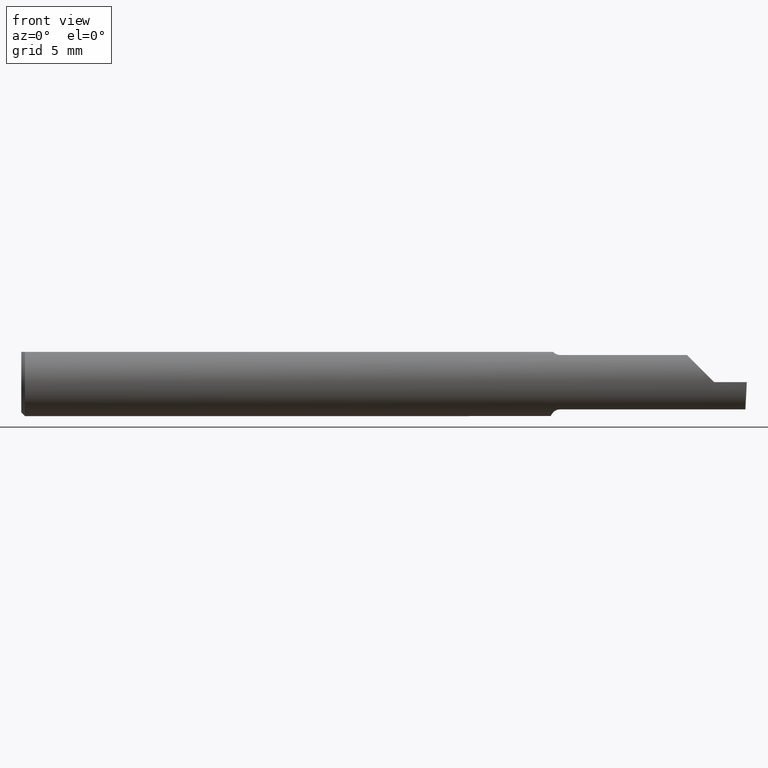
[diagram: clean part render]
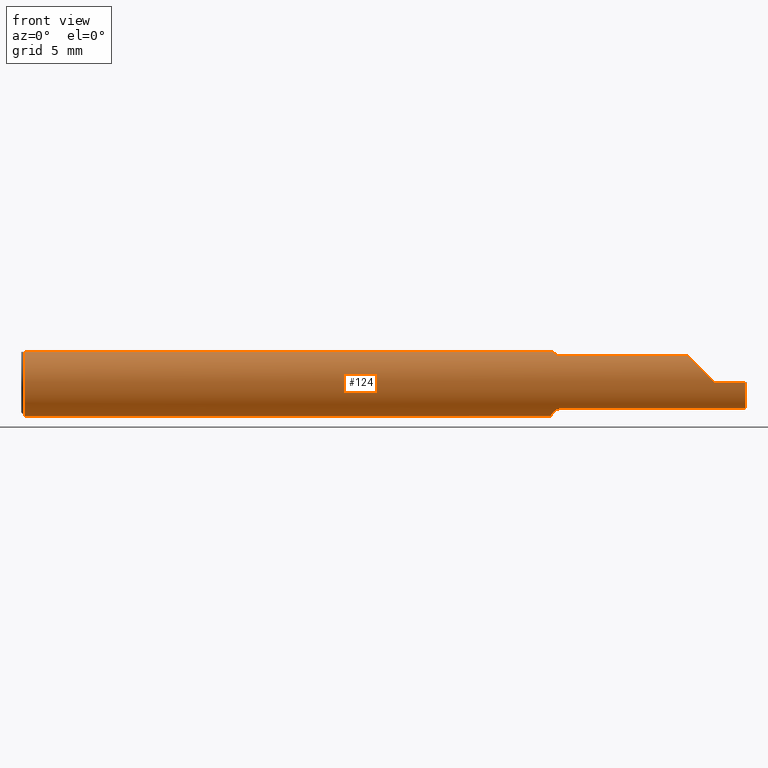
[diagram: same view with one face highlighted and labeled with its STEP entity id]
A machine part, front view. The second image highlights one B-rep face of the part: STEP entity #124.
In plain terms, the highlighted cylindrical surface (edge-blend (fillet) strip) has radius 2.3774 mm, axis along (-1, -0, -0).
Its self-contained STEP definition (entity closure, byte-faithful):
#3 = EDGE_CURVE ( 'NONE', #436, #101, #521, .T. ) ;
#21 = VERTEX_POINT ( 'NONE', #227 ) ;
#23 = CARTESIAN_POINT ( 'NONE',  ( 1.459999999999999964, 0.000000000000000000, 0.000000000000000000 ) ) ;
#25 = CARTESIAN_POINT ( 'NONE',  ( 1.995069675717878299, -0.05810704225352106983, -0.07337936794867833123 ) ) ;
#28 = DIRECTION ( 'NONE',  ( 1.000000000000000000, 3.318744227790140248E-17, 0.000000000000000000 ) ) ;
#37 = CARTESIAN_POINT ( 'NONE',  ( 1.461762116932663336, -0.02818790137206265284, -0.08941930521177111901 ) ) ;
#45 = LINE ( 'NONE', #531, #63 ) ;
#55 = VERTEX_POINT ( 'NONE', #463 ) ;
#60 = DIRECTION ( 'NONE',  ( -1.000000000000000000, -0.000000000000000000, -0.000000000000000000 ) ) ;
#63 = VECTOR ( 'NONE', #692, 39.37007874015748143 ) ;
#65 = CARTESIAN_POINT ( 'NONE',  ( 1.729736605000000038, -0.05810704225352107677, -0.07337936794867833123 ) ) ;
#77 = CARTESIAN_POINT ( 'NONE',  ( 1.995996405735428469, -0.09359999999999997489, -0.02910696448121681199 ) ) ;
#81 = CARTESIAN_POINT ( 'NONE',  ( 1.466206319820905213, -0.04283575577410227847, -0.08338874798717356429 ) ) ;
#84 = VERTEX_POINT ( 'NONE', #205 ) ;
#88 = CARTESIAN_POINT ( 'NONE',  ( 1.995069675717878299, -0.05810704225352106983, -0.07337936794867833123 ) ) ;
#91 = VECTOR ( 'NONE', #514, 39.37007874015748143 ) ;
#96 = CARTESIAN_POINT ( 'NONE',  ( 1.466129652885479473, -0.04209513035970117306, 0.08359999999999991049 ) ) ;
#101 = VERTEX_POINT ( 'NONE', #499 ) ;
#103 = LINE ( 'NONE', #321, #584 ) ;
#113 = VERTEX_POINT ( 'NONE', #154 ) ;
#119 = DIRECTION ( 'NONE',  ( 1.000000000000000000, 0.000000000000000000, 0.000000000000000000 ) ) ;
#124 = ADVANCED_FACE ( 'NONE', ( #316 ), #641, .T. ) ;
#128 = ORIENTED_EDGE ( 'NONE', *, *, #555, .F. ) ;
#130 = CARTESIAN_POINT ( 'NONE',  ( 1.484999999999999876, -0.05810704225352104901, -0.07337936794867834511 ) ) ;
#142 = ORIENTED_EDGE ( 'NONE', *, *, #359, .F. ) ;
#143 = CARTESIAN_POINT ( 'NONE',  ( 1.910000000000000142, -0.09360000000000005815, 1.102182119232621301E-17 ) ) ;
#150 = CARTESIAN_POINT ( 'NONE',  ( 1.470033121973953527, -0.04963861219531613689, 0.07943694244057658560 ) ) ;
#153 = CARTESIAN_POINT ( 'NONE',  ( 1.480292432600753827, -0.05747478081012627471, 0.07388601572377852256 ) ) ;
#154 = CARTESIAN_POINT ( 'NONE',  ( 1.484999999999999876, -0.05810704225352104207, 0.07337936794867834511 ) ) ;
#169 = EDGE_CURVE ( 'NONE', #55, #436, #103, .T. ) ;
#173 = LINE ( 'NONE', #65, #91 ) ;
#179 = CARTESIAN_POINT ( 'NONE',  ( 1.854690286057536941, -0.08092595952420821026, 0.05530971394246249340 ) ) ;
#183 = CARTESIAN_POINT ( 'NONE',  ( 1.462856118429613828, -0.03323074941465640336, -0.08766015375840491286 ) ) ;
#195 = VERTEX_POINT ( 'NONE', #255 ) ;
#204 = DIRECTION ( 'NONE',  ( 0.000000000000000000, 0.000000000000000000, -1.000000000000000000 ) ) ;
#205 = CARTESIAN_POINT ( 'NONE',  ( 1.484999999999999876, -0.05810704225352104901, -0.07337936794867834511 ) ) ;
#208 = ORIENTED_EDGE ( 'NONE', *, *, #369, .F. ) ;
#210 = CARTESIAN_POINT ( 'NONE',  ( 1.729736605000000038, -0.05810704225352107677, 0.07337936794867833123 ) ) ;
#218 = ORIENTED_EDGE ( 'NONE', *, *, #455, .F. ) ;
#223 = EDGE_CURVE ( 'NONE', #391, #84, #173, .T. ) ;
#226 = CARTESIAN_POINT ( 'NONE',  ( 1.995302472377616931, -0.08092595952420821026, -0.05530971394246247952 ) ) ;
#227 = CARTESIAN_POINT ( 'NONE',  ( 0.01000000000000016674, 0.04209513035969864037, 0.08359999999999988274 ) ) ;
#229 = ORIENTED_EDGE ( 'NONE', *, *, #592, .F. ) ;
#231 = VECTOR ( 'NONE', #498, 39.37007874015748143 ) ;
#232 = AXIS2_PLACEMENT_3D ( 'NONE', #382, #60, #377 ) ;
#255 = CARTESIAN_POINT ( 'NONE',  ( 0.01000000000000016674, 0.000000000000000000, -0.09360000000000001652 ) ) ;
#263 = CARTESIAN_POINT ( 'NONE',  ( 1.459999999999999964, 0.04209513035969864037, 0.08359999999999988274 ) ) ;
#293 = CARTESIAN_POINT ( 'NONE',  ( 1.997012998164632958, -0.09360000000000001652, 0.000000000000000000 ) ) ;
#297 = VERTEX_POINT ( 'NONE', #606 ) ;
#314 = ORIENTED_EDGE ( 'NONE', *, *, #223, .F. ) ;
#316 = FACE_OUTER_BOUND ( 'NONE', #682, .T. ) ;
#321 = CARTESIAN_POINT ( 'NONE',  ( 2.999519565323742037E-32, -0.09359999999999998876, 2.449293598294716768E-16 ) ) ;
#338 = CARTESIAN_POINT ( 'NONE',  ( 1.459999999999999964, -0.006757276995305246635, -0.09335576686851605743 ) ) ;
#344 = EDGE_CURVE ( 'NONE', #581, #195, #452, .T. ) ;
#347 = VERTEX_POINT ( 'NONE', #338 ) ;
#349 = CARTESIAN_POINT ( 'NONE',  ( 1.479541435880793676, -0.05724930034136796464, -0.07406832579512041825 ) ) ;
#350 = EDGE_CURVE ( 'NONE', #391, #55, #611, .T. ) ;
#358 = CARTESIAN_POINT ( 'NONE',  ( 1.459999999999999964, -0.006757276995305246635, -0.09335576686851605743 ) ) ;
#359 = EDGE_CURVE ( 'NONE', #347, #597, #631, .T. ) ;
#368 = DIRECTION ( 'NONE',  ( 1.000000000000000000, 0.000000000000000000, 0.000000000000000000 ) ) ;
#369 = EDGE_CURVE ( 'NONE', #581, #297, #45, .T. ) ;
#372 = CARTESIAN_POINT ( 'NONE',  ( 1.476308147845286189, -0.05549979236676341743, 0.07538081185522380046 ) ) ;
#377 = DIRECTION ( 'NONE',  ( 0.000000000000000000, 0.000000000000000000, 1.000000000000000000 ) ) ;
#382 = CARTESIAN_POINT ( 'NONE',  ( 0.000000000000000000, 0.000000000000000000, 0.000000000000000000 ) ) ;
#389 = LINE ( 'NONE', #616, #231 ) ;
#391 = VERTEX_POINT ( 'NONE', #88 ) ;
#398 = ORIENTED_EDGE ( 'NONE', *, *, #350, .T. ) ;
#419 = CARTESIAN_POINT ( 'NONE',  ( 1.460323329158490946, -0.01767221859896418376, -0.09207639555340681181 ) ) ;
#431 = CARTESIAN_POINT ( 'NONE',  ( 1.474565501274438306, -0.05415466354550839412, 0.07636456853488576835 ) ) ;
#434 = CARTESIAN_POINT ( 'NONE',  ( 0.01000000000000016674, -0.04209513035969864037, 0.08359999999999988274 ) ) ;
#436 = VERTEX_POINT ( 'NONE', #143 ) ;
#443 = DIRECTION ( 'NONE',  ( 1.000000000000000000, 3.318744227790140248E-17, 0.000000000000000000 ) ) ;
#452 = CIRCLE ( 'NONE', #466, 0.09360000000000001652 ) ;
#454 = CIRCLE ( 'NONE', #540, 0.09360000000000001652 ) ;
#455 = EDGE_CURVE ( 'NONE', #84, #347, #636, .T. ) ;
#463 = CARTESIAN_POINT ( 'NONE',  ( 1.997012998164632958, -0.09360000000000001652, 0.000000000000000000 ) ) ;
#466 = AXIS2_PLACEMENT_3D ( 'NONE', #614, #119, #510 ) ;
#476 = CARTESIAN_POINT ( 'NONE',  ( 1.880893035518782730, -0.09359999999999997489, 0.02910696448121682239 ) ) ;
#478 = ORIENTED_EDGE ( 'NONE', *, *, #3, .T. ) ;
#480 = DIRECTION ( 'NONE',  ( 0.000000000000000000, 1.000000000000000000, 0.000000000000000000 ) ) ;
#481 = ORIENTED_EDGE ( 'NONE', *, *, #169, .T. ) ;
#498 = DIRECTION ( 'NONE',  ( -1.000000000000000000, -0.000000000000000000, -0.000000000000000000 ) ) ;
#499 = CARTESIAN_POINT ( 'NONE',  ( 1.836620632051321200, -0.05810704225352102820, 0.07337936794867834511 ) ) ;
#510 = DIRECTION ( 'NONE',  ( 0.000000000000000000, 0.000000000000000000, -1.000000000000000000 ) ) ;
#514 = DIRECTION ( 'NONE',  ( -1.000000000000000000, -3.318744227790140248E-17, -0.000000000000000000 ) ) ;
#521 =( BOUNDED_CURVE ( )  B_SPLINE_CURVE ( 3, ( #573, #476, #179, #522 ),
 .UNSPECIFIED., .F., .T. ) 
 B_SPLINE_CURVE_WITH_KNOTS ( ( 4, 4 ),
 ( 4.712388980384689674, 5.613420356061720184 ),
 .UNSPECIFIED. ) 
 CURVE ( )  GEOMETRIC_REPRESENTATION_ITEM ( )  RATIONAL_B_SPLINE_CURVE ( ( 1.000000000000000000, 0.9334817841311873199, 0.9334817841311873199, 1.000000000000000000 ) ) 
 REPRESENTATION_ITEM ( '' )  );
#522 = CARTESIAN_POINT ( 'NONE',  ( 1.836620632051321200, -0.05810704225352102820, 0.07337936794867834511 ) ) ;
#524 = CARTESIAN_POINT ( 'NONE',  ( 1.473195691242755956, -0.05295078397730242081, -0.07721567059148473633 ) ) ;
#531 = CARTESIAN_POINT ( 'NONE',  ( 0.000000000000000000, -0.04209513035969864037, 0.08359999999999988274 ) ) ;
#540 = AXIS2_PLACEMENT_3D ( 'NONE', #546, #368, #204 ) ;
#546 = CARTESIAN_POINT ( 'NONE',  ( 0.01000000000000016674, 0.000000000000000000, 0.000000000000000000 ) ) ;
#549 = DIRECTION ( 'NONE',  ( -1.000000000000000000, -0.000000000000000000, -0.000000000000000000 ) ) ;
#555 = EDGE_CURVE ( 'NONE', #113, #101, #598, .T. ) ;
#567 = ORIENTED_EDGE ( 'NONE', *, *, #649, .F. ) ;
#572 = CARTESIAN_POINT ( 'NONE',  ( 1.468379054196076394, -0.04728090127810220811, -0.08090622725813378935 ) ) ;
#573 = CARTESIAN_POINT ( 'NONE',  ( 1.910000000000000142, -0.09360000000000005815, 1.102182119232621301E-17 ) ) ;
#575 = VECTOR ( 'NONE', #443, 39.37007874015748143 ) ;
#576 = CARTESIAN_POINT ( 'NONE',  ( 1.475047675231717204, -0.05464443219068155361, -0.07601042893068199469 ) ) ;
#581 = VERTEX_POINT ( 'NONE', #434 ) ;
#582 = EDGE_CURVE ( 'NONE', #195, #21, #454, .T. ) ;
#584 = VECTOR ( 'NONE', #549, 39.37007874015748143 ) ;
#592 = EDGE_CURVE ( 'NONE', #297, #113, #612, .T. ) ;
#594 = CARTESIAN_POINT ( 'NONE',  ( 1.482603832840145852, -0.05810704225352100044, 0.07337936794867837287 ) ) ;
#597 = VERTEX_POINT ( 'NONE', #263 ) ;
#598 = LINE ( 'NONE', #210, #575 ) ;
#606 = CARTESIAN_POINT ( 'NONE',  ( 1.466129652885479473, -0.04209513035970117306, 0.08359999999999991049 ) ) ;
#611 =( BOUNDED_CURVE ( )  B_SPLINE_CURVE ( 3, ( #25, #226, #77, #293 ),
 .UNSPECIFIED., .F., .F. ) 
 B_SPLINE_CURVE_WITH_KNOTS ( ( 4, 4 ),
 ( 0.2063001339125775657, 1.107331509589607910 ),
 .UNSPECIFIED. ) 
 CURVE ( )  GEOMETRIC_REPRESENTATION_ITEM ( )  RATIONAL_B_SPLINE_CURVE ( ( 1.000000000000000000, 0.9334817841311873199, 0.9334817841311873199, 1.000000000000000000 ) ) 
 REPRESENTATION_ITEM ( '' )  );
#612 = B_SPLINE_CURVE_WITH_KNOTS ( 'NONE', 3,
 ( #96, #699, #150, #431, #372, #153, #594, #651 ),
 .UNSPECIFIED., .F., .F.,
 ( 4, 2, 2, 4 ),
 ( 4.741820243497489681E-07, 0.0003579866703973862293, 0.0005367429145838981900, 0.0007154991587704100965 ),
 .UNSPECIFIED. ) ;
#614 = CARTESIAN_POINT ( 'NONE',  ( 0.01000000000000016674, 0.000000000000000000, 0.000000000000000000 ) ) ;
#616 = CARTESIAN_POINT ( 'NONE',  ( 0.000000000000000000, 0.04209513035969864037, 0.08359999999999988274 ) ) ;
#628 = CARTESIAN_POINT ( 'NONE',  ( 1.482196475348975140, -0.05810704225352104901, -0.07337936794867837287 ) ) ;
#631 = CIRCLE ( 'NONE', #662, 0.09360000000000001652 ) ;
#632 = CARTESIAN_POINT ( 'NONE',  ( 1.459999999999999964, -0.01220003991882283832, -0.09296180880970876526 ) ) ;
#636 = B_SPLINE_CURVE_WITH_KNOTS ( 'NONE', 3,
 ( #130, #628, #349, #576, #524, #572, #81, #183, #37, #419, #632, #358 ),
 .UNSPECIFIED., .F., .F.,
 ( 4, 2, 2, 2, 2, 4 ),
 ( 1.968126669309073504E-07, 0.0002104342718631983333, 0.0004206717310594657966, 0.0008411466494519999641, 0.001261621567844534294, 0.001682096486237068516 ),
 .UNSPECIFIED. ) ;
#641 = CYLINDRICAL_SURFACE ( 'NONE', #232, 0.09360000000000001652 ) ;
#642 = ORIENTED_EDGE ( 'NONE', *, *, #582, .T. ) ;
#649 = EDGE_CURVE ( 'NONE', #597, #21, #389, .T. ) ;
#651 = CARTESIAN_POINT ( 'NONE',  ( 1.484999999999999876, -0.05810704225352104207, 0.07337936794867834511 ) ) ;
#662 = AXIS2_PLACEMENT_3D ( 'NONE', #23, #28, #480 ) ;
#678 = ORIENTED_EDGE ( 'NONE', *, *, #344, .T. ) ;
#682 = EDGE_LOOP ( 'NONE', ( #314, #398, #481, #478, #128, #229, #208, #678, #642, #567, #142, #218 ) ) ;
#692 = DIRECTION ( 'NONE',  ( 1.000000000000000000, 0.000000000000000000, 0.000000000000000000 ) ) ;
#699 = CARTESIAN_POINT ( 'NONE',  ( 1.467870098798738088, -0.04602557371825106297, 0.08162090280442944878 ) ) ;